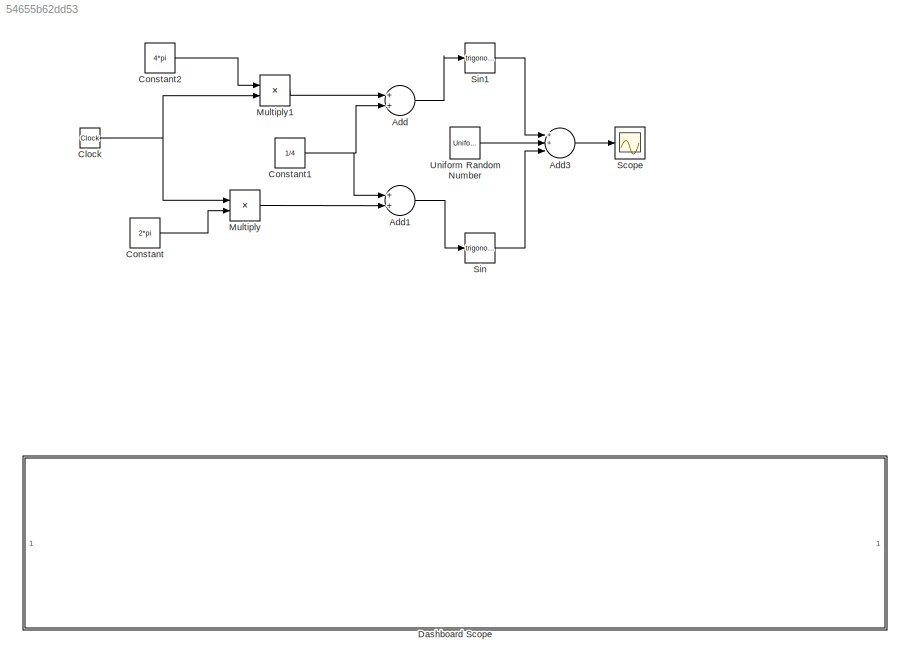
MODEL slx_54655b62dd53
KIND model
CONFIG AbsTol = auto
CONFIG EnableMultiTasking = off
CONFIG FixedStep = 0.2
CONFIG MaxStep = auto
CONFIG MinStep = auto
CONFIG RelTol = 1e-3
CONFIG SampleTimeConstraint = Unconstrained
CONFIG Solver = FixedStepAuto
CONFIG SolverName = FixedStepAuto
CONFIG StartTime = 0.0
CONFIG StopTime = 10
BLOCK [Sum] Add
  InputSameDT = off
  OutDataTypeStr = Inherit: Inherit via internal rule
  Ports = [2, 1]
  SaturateOnIntegerOverflow = off
BLOCK [Sum] Add1
  InputSameDT = off
  OutDataTypeStr = Inherit: Inherit via internal rule
  Ports = [2, 1]
  SaturateOnIntegerOverflow = off
BLOCK [Sum] Add3
  InputSameDT = off
  Inputs = 3
  OutDataTypeStr = Inherit: Inherit via internal rule
  Ports = [3, 1]
  SaturateOnIntegerOverflow = off
BLOCK [Clock] Clock
BLOCK [Constant] Constant
  Value = 2*pi
BLOCK [Constant] Constant1
  Value = 1/4
BLOCK [Constant] Constant2
  Value = 4*pi
BLOCK [SubSystem] Dashboard Scope
  DialogController = hmiCreateDDGDialog
  IsWebBlock = on
  MaskHideContents = on
  Ports = []
  RequestExecContextInheritance = off
BLOCK [Product] Multiply
  InputSameDT = off
  OutDataTypeStr = Inherit: Inherit via internal rule
  Ports = [2, 1]
  RndMeth = Floor
  SaturateOnIntegerOverflow = off
BLOCK [Product] Multiply1
  InputSameDT = off
  OutDataTypeStr = Inherit: Inherit via internal rule
  Ports = [2, 1]
  RndMeth = Floor
  SaturateOnIntegerOverflow = off
BLOCK [Scope] Scope
  Floating = off
  NumInputPorts = 1
  Ports = [1]
  ScopeSpecificationString = Simulink.scopes.TimeScopeBlockCfg('CurrentConfiguration', extmgr.ConfigurationSet(extmgr.Configuration('Core','General UI',true,'FigureColor',[1 1 1]),extmgr.Configuration('Core','Source UI',true),extmgr.Configuration('Sources','WiredSimulink',true),extmgr.Configuration('Visuals','Time Domain',true,'SerializedDisplays',{struct('MinYLimReal','-2.4832','MaxYLimReal','2.33545','YLabelReal','','MinYLi...<+1472ch>
BLOCK [Trigonometry] Sin
  Ports = [1, 1]
BLOCK [Trigonometry] Sin1
  Ports = [1, 1]
BLOCK [UniformRandomNumber] Uniform Random Number
  Maximum = 0.5
  Minimum = -0.5
  SampleTime = 0.2
  Seed = 13
LINE Add1:1 -> Sin:1
LINE Add3:1 -> Scope:1
LINE Add:1 -> Sin1:1
NET Clock:1 -> Multiply1:2, Multiply:1
NET Constant1:1 -> Add1:1, Add:2
LINE Constant2:1 -> Multiply1:1
LINE Constant:1 -> Multiply:2
LINE Multiply1:1 -> Add:1
LINE Multiply:1 -> Add1:2
LINE Sin1:1 -> Add3:1
LINE Sin:1 -> Add3:3
LINE Uniform Random Number:1 -> Add3:2
note: NET lines group one-source signal fan-out (src -> all destinations, sorted); 1:1 wires keep LINE
